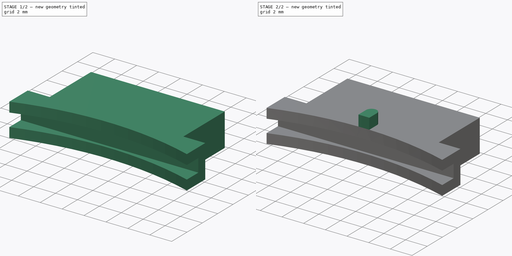
[diagram: build sequence overview — one tinted view per stage of 2, left to right]
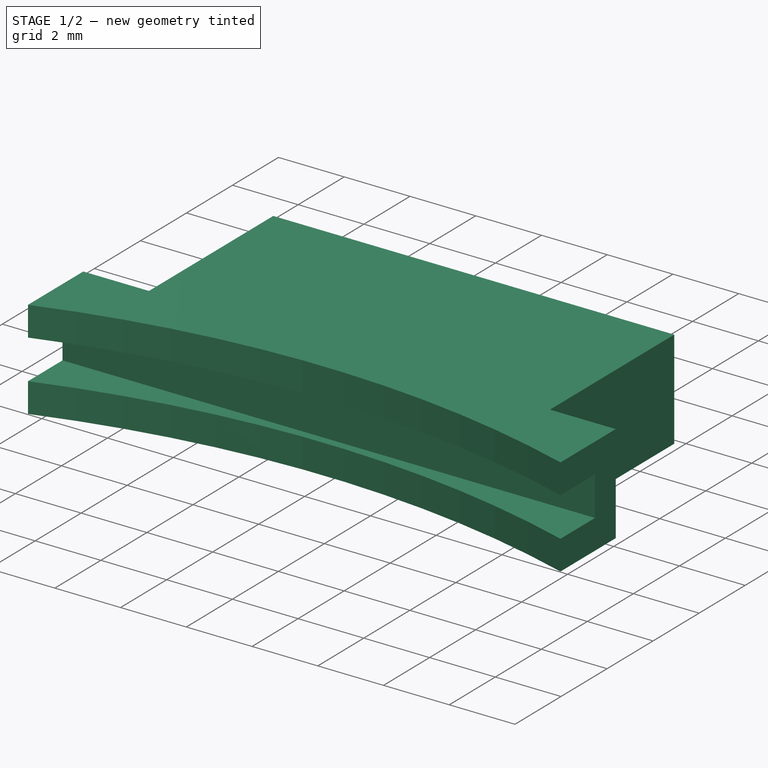
[diagram: stage 1 of 2 — iso view after this stage's code; geometry added in this stage tinted green]
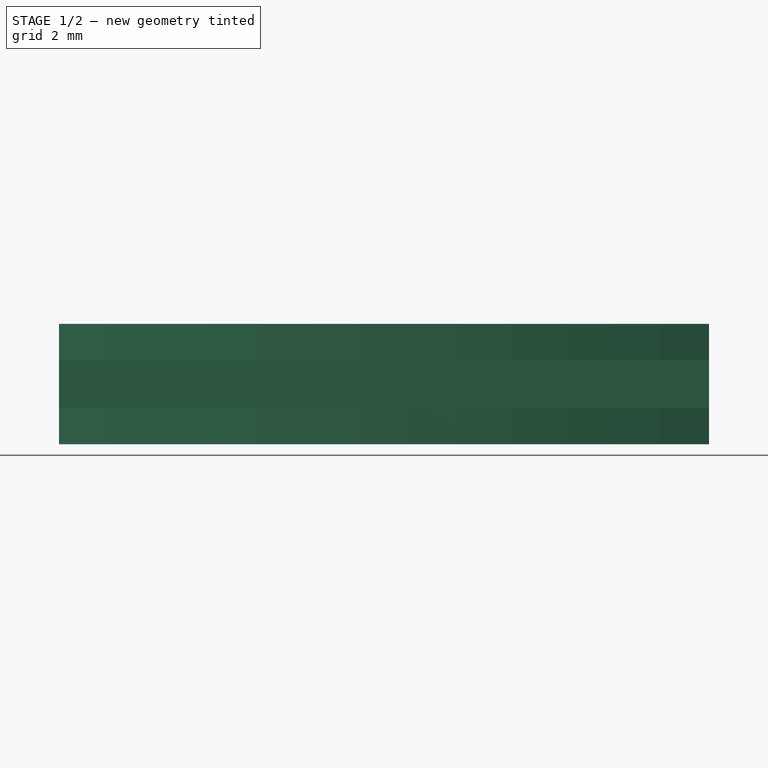
[diagram: stage 1 of 2 — front view after this stage's code; geometry added in this stage tinted green]
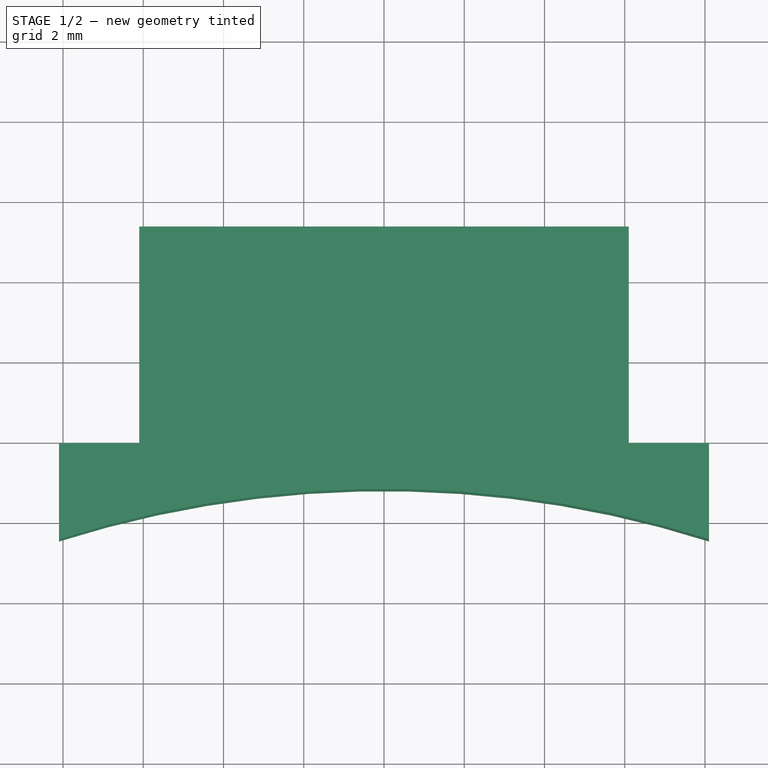
[diagram: stage 1 of 2 — top view after this stage's code; geometry added in this stage tinted green]
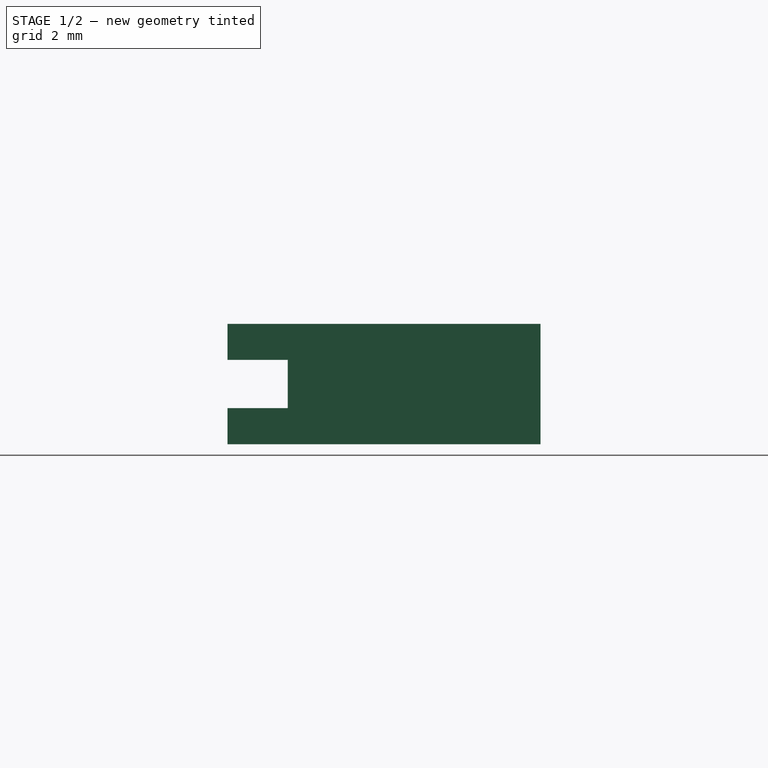
[diagram: stage 1 of 2 — right view after this stage's code; geometry added in this stage tinted green]
FCSTD DOCUMENT  (FreeCAD 0.20R29603 (Git))
Label: aperture-lock
License: All rights reserved
LicenseURL: http://en.wikipedia.org/wiki/All_rights_reserved
objects: Sketcher::SketchObject×3, PartDesign::Pad×2, PartDesign::Plane×1, PartDesign::Pocket×1, PartDesign::Body×1
note: 11 computed .brp shape members not serialized (recipe doc carries the construction recipe); baked Part::Feature solids carry a one-line shape summary decoded from their .brp

FEATURE [Sketcher::SketchObject] Sketch
  FullyConstrained = true
  MapMode = 5
  Support = -> [XY_Plane]
  sketch-geometry (8):
    g0: LineSegment StartX=6.1 StartY=33.3466 StartZ=0 EndX=-6.1 EndY=33.3466 EndZ=0
    g1: LineSegment StartX=-6.1 StartY=33.3466 StartZ=0 EndX=-6.1 EndY=27.9466 EndZ=0
    g2: LineSegment StartX=6.1 StartY=33.3466 StartZ=0 EndX=6.1 EndY=27.9466 EndZ=0
    g3: LineSegment StartX=-6.1 StartY=27.9466 StartZ=0 EndX=-8.1 EndY=27.9466 EndZ=0
    g4: LineSegment StartX=6.1 StartY=27.9466 StartZ=0 EndX=8.1 EndY=27.9466 EndZ=0
    g5: LineSegment StartX=8.1 StartY=27.9466 StartZ=0 EndX=8.1 EndY=25.5466 EndZ=0
    g6: LineSegment StartX=-8.1 StartY=27.9466 StartZ=0 EndX=-8.1 EndY=25.5466 EndZ=0
    g7: ArcOfCircle CenterX=0 CenterY=0 CenterZ=0 NormalX=0 NormalY=0 NormalZ=1 AngleXU=0 Radius=26.8 StartAngle=1.26376 EndAngle=1.87784
  constraints (24):
    c: Horizontal(g0)
    c: Coincident(g1,g0)
    c: Vertical(g1)
    c: Coincident(g2,g0)
    c: Vertical(g2)
    c: Equal(g2,g1)
    c: DistanceX(g0,g0) = 12.2
    c: Coincident(g3,g1)
    c: Horizontal(g3)
    c: Coincident(g4,g2)
    c: Horizontal(g4)
    c: Coincident(g5,g4)
    c: Vertical(g5)
    c: Coincident(g6,g3)
    c: Vertical(g6)
    c: Equal(g3,g4)
    c: Equal(g6,g5)
    c: Coincident(g7,g5)
    c: Coincident(g7,g6)
    c: DistanceY(g1,g1) = 5.4
    c: DistanceX(g3,g3) = 2
    c: DistanceY(g6,g6) = 2.4
    c: Radius(g7) = 26.8
    c: Coincident(g7,g-1)
FEATURE [PartDesign::Pad] Pad
  Direction = (0,0,1)
  Length = 3
  Length2 = 10
  Profile = -> Sketch
  ReferenceAxis = -> Sketch [N_Axis]
  Type = 0
FEATURE [PartDesign::Plane] DatumPlane
  Length = 60
  MapMode = 13
  Placement = pos=(2.7,25.5466,1) rot=(1,0,0;1.5708rad)
  ResizeMode = 0
  Support = -> [Pad]
  Width = 60
FEATURE [Sketcher::SketchObject] Sketch001
  ExternalGeometry = -> [Pad]
  FullyConstrained = true
  MapMode = 5
  Placement = pos=(2.7,25.5466,1) rot=(1,0,0;1.5708rad)
  Support = -> [DatumPlane]
  sketch-geometry (6):
    g0: LineSegment StartX=5.4 StartY=1.1 StartZ=0 EndX=5.4 EndY=-0.1 EndZ=0
    g1: LineSegment StartX=-10.8 StartY=-0.1 StartZ=0 EndX=5.4 EndY=-0.1 EndZ=0
    g2: LineSegment StartX=-10.8 StartY=-0.1 StartZ=0 EndX=-10.8 EndY=1.1 EndZ=0
    g3: LineSegment StartX=-10.8 StartY=1.1 StartZ=0 EndX=5.4 EndY=1.1 EndZ=0
    g4: LineSegment StartX=-10.8 StartY=2 StartZ=0 EndX=-10.8 EndY=1.1 EndZ=0
    g5: LineSegment StartX=5.4 StartY=-1 StartZ=0 EndX=5.4 EndY=-0.1 EndZ=0
  constraints (16):
    c: Vertical(g0)
    c: Coincident(g1,g0)
    c: Horizontal(g1)
    c: Coincident(g2,g1)
    c: Vertical(g2)
    c: Horizontal(g3)
    c: Coincident(g3,g0)
    c: PointOnObject(g0,g-3)
    c: PointOnObject(g2,g-4)
    c: Coincident(g3,g2)
    c: DistanceY(g0,g0) = 1.2
    c: Coincident(g4,g-4)
    c: Coincident(g4,g2)
    c: Coincident(g5,g-3)
    c: Coincident(g5,g0)
    c: Equal(g5,g4)
FEATURE [PartDesign::Pocket] Pocket
  BaseFeature = -> Pad
  Direction = (0,1,-2e-16)
  Length = 1.5
  Length2 = 5
  Profile = -> Sketch001
  ReferenceAxis = -> Sketch001 [N_Axis]
  Type = 0
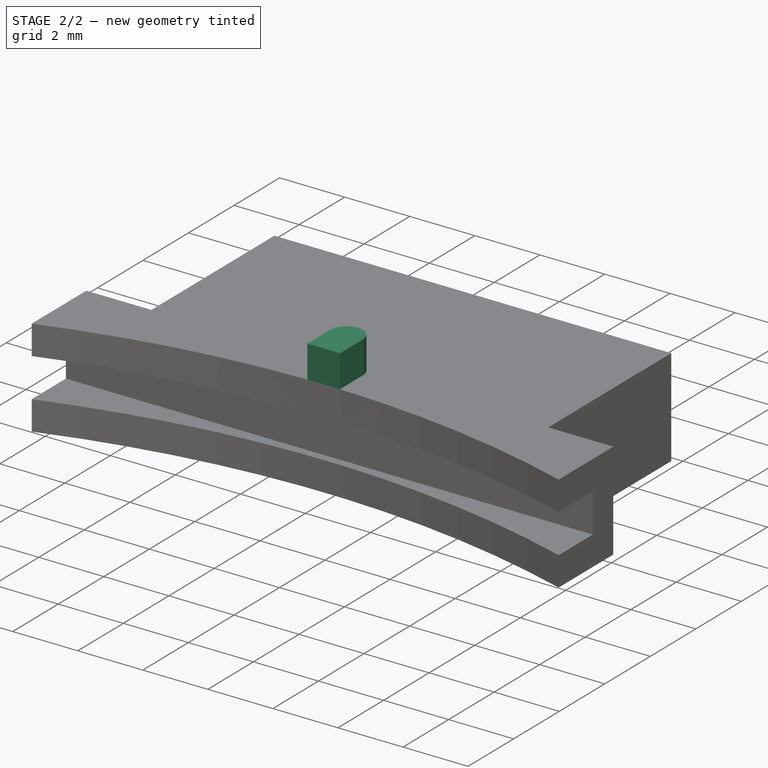
[diagram: stage 2 of 2 — iso view after this stage's code; geometry added in this stage tinted green]
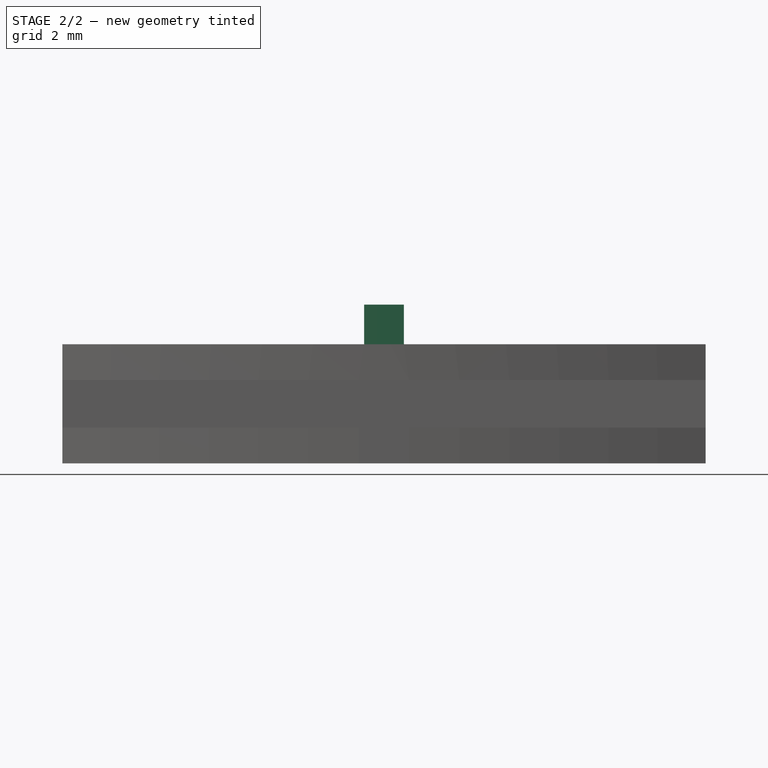
[diagram: stage 2 of 2 — front view after this stage's code; geometry added in this stage tinted green]
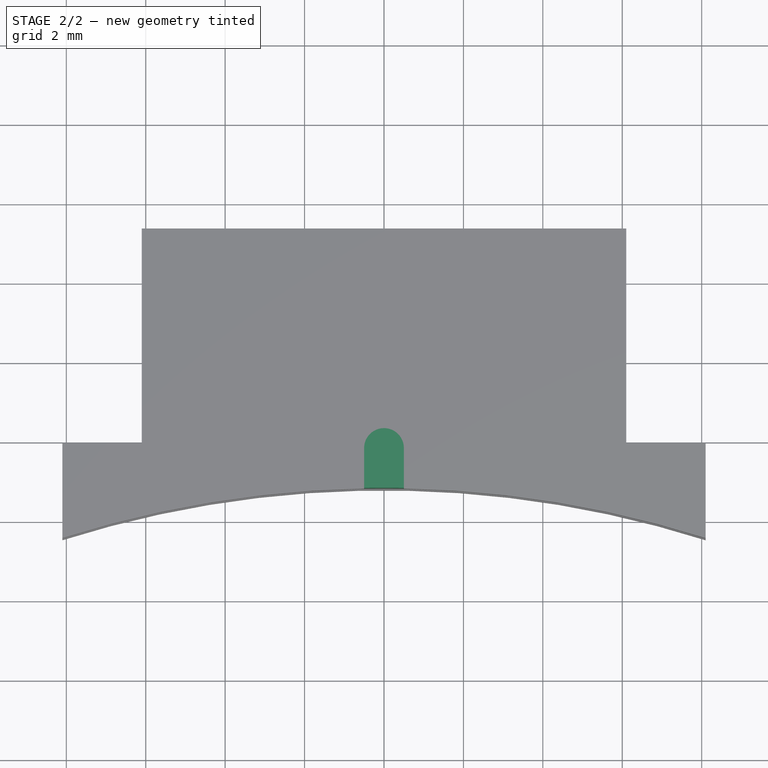
[diagram: stage 2 of 2 — top view after this stage's code; geometry added in this stage tinted green]
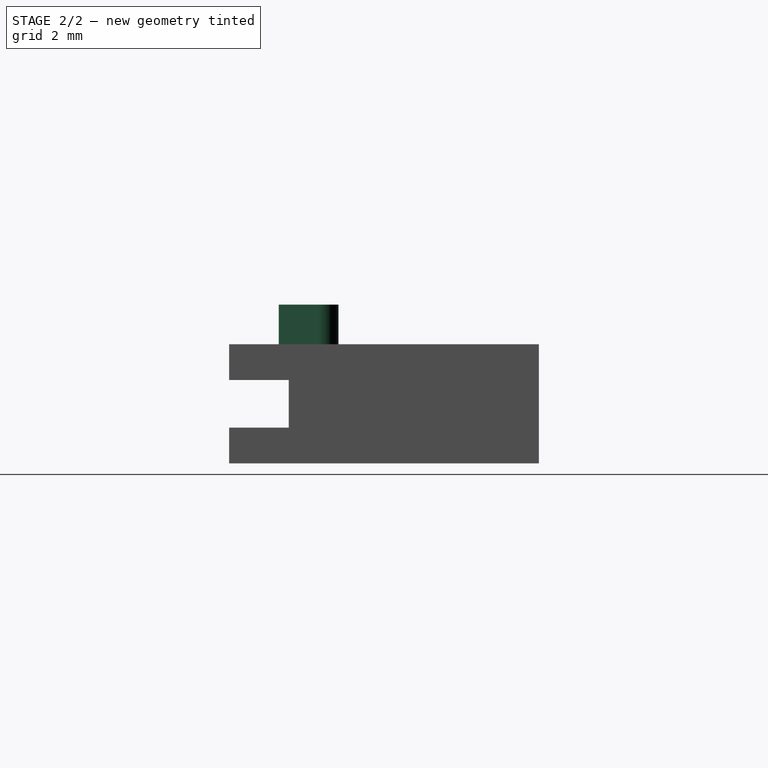
[diagram: stage 2 of 2 — right view after this stage's code; geometry added in this stage tinted green]
FEATURE [Sketcher::SketchObject] Sketch002
  ExternalGeometry = -> [Pocket]
  FullyConstrained = true
  MapMode = 5
  Placement = pos=(0,0,3) rot=(0,0,1;0rad)
  Support = -> [Pocket]
  sketch-geometry (6):
    g0: GeomPoint X=0 Y=26.8 Z=0
    g1: ArcOfCircle CenterX=0 CenterY=27.8 CenterZ=0 NormalX=0 NormalY=0 NormalZ=1 AngleXU=0 Radius=0.5 StartAngle=-1.8e-15 EndAngle=3.14159
    g2: LineSegment StartX=-0.5 StartY=27.8 StartZ=0 EndX=-0.5 EndY=26.7953 EndZ=0
    g3: LineSegment StartX=0.5 StartY=27.8 StartZ=0 EndX=0.5 EndY=26.7953 EndZ=0
    g4: GeomPoint X=0 Y=28.3 Z=0
    g5: ArcOfCircle CenterX=1.91e-14 CenterY=-2.221e-12 CenterZ=0 NormalX=0 NormalY=0 NormalZ=1 AngleXU=0 Radius=26.8 StartAngle=1.55214 EndAngle=1.58945
  constraints (18):
    c: PointOnObject(g0,g-2)
    c: PointOnObject(g0,g-3)
    c: Angle(g1) = 3.14159
    c: PointOnObject(g1,g-2)
    c: Coincident(g2,g1)
    c: Vertical(g2)
    c: Coincident(g3,g1)
    c: Vertical(g3)
    c: DistanceX(g2,g3) = 1
    c: PointOnObject(g4,g1)
    c: PointOnObject(g4,g-2)
    c: DistanceY(g0,g4) = 1.5
    c: Equal(g3,g2)
    c: Coincident(g3,g5)
    c: Coincident(g5,g2)
    c: PointOnObject(g0,g5)
    c: PointOnObject(g3,g-3)
    c: PointOnObject(g2,g-3)
FEATURE [PartDesign::Pad] Pad001
  BaseFeature = -> Pocket
  Direction = (0,0,1)
  Length = 1
  Length2 = 10
  Profile = -> Sketch002
  ReferenceAxis = -> Sketch002 [N_Axis]
  Type = 0
FEATURE [PartDesign::Body] Body
  Group = -> [Sketch,Pad,DatumPlane,Sketch001,Pocket,Sketch002,Pad001]
  Origin = -> Origin
  Tip = -> Pad001
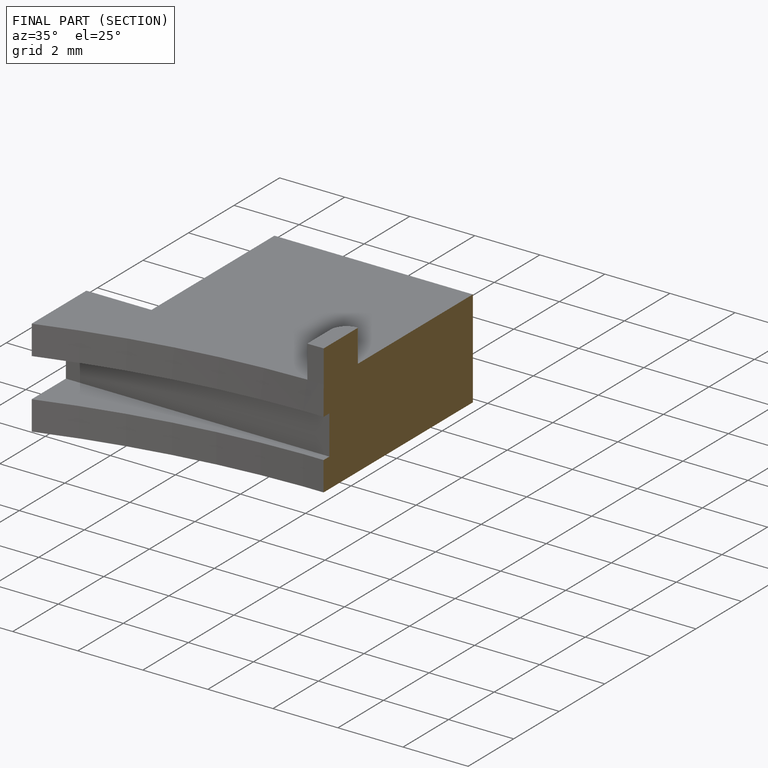
[diagram: finished part — half-section view (interior)]
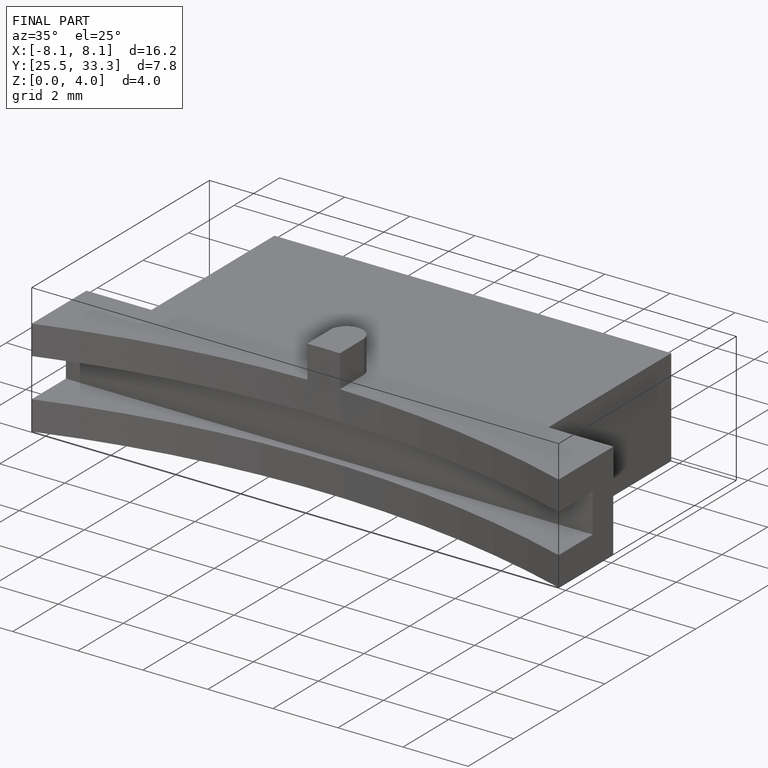
[diagram: finished part — iso view with bounding-box wireframe]
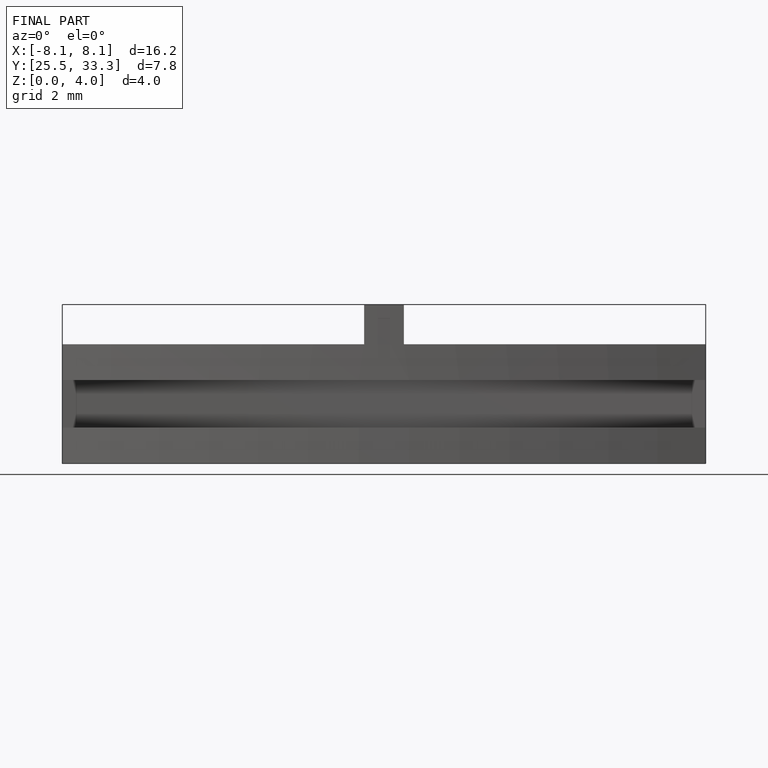
[diagram: finished part — front view with bounding-box wireframe]
